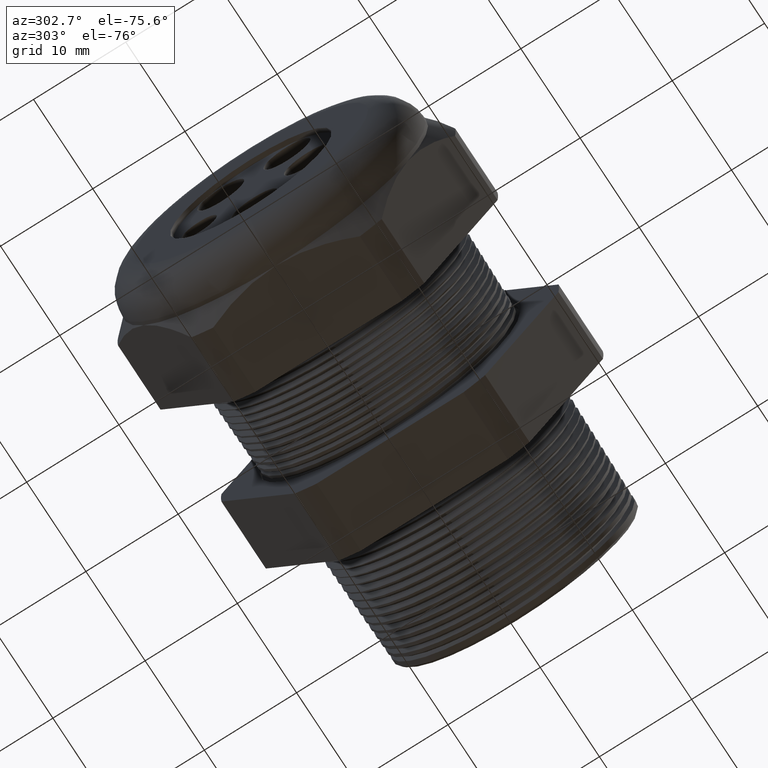
[diagram: clean part render]
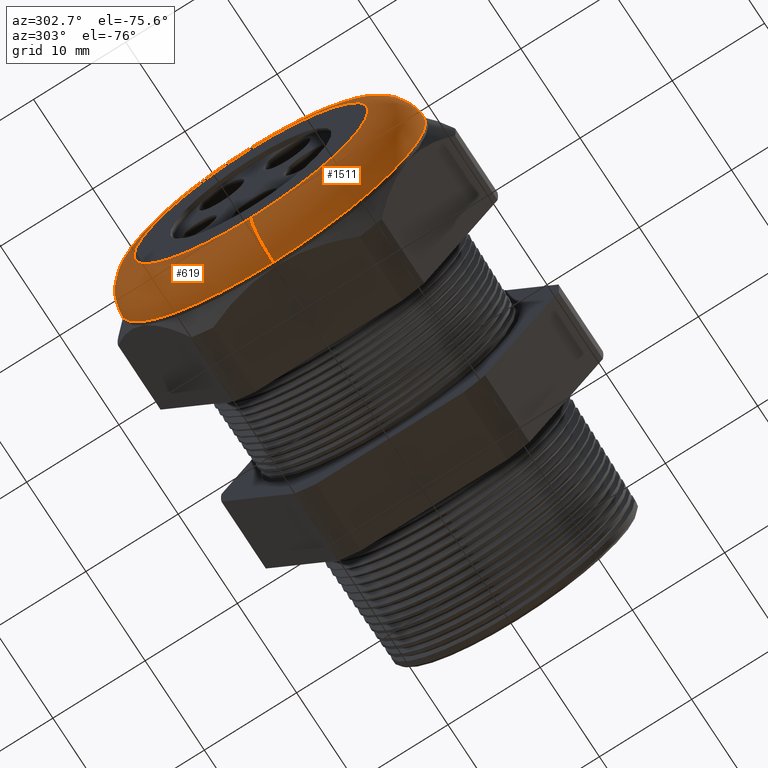
[diagram: same view with one multi-face feature highlighted, each face labeled with its STEP entity id]
A machine part, auxiliary view. The highlighted faces form ONE feature: a constant-radius fillet chain: 2 tangent blend faces with common blend radius 3.81 mm. The faces share edges in the B-rep.
Their STEP definitions:
[1] entity #1511 (Torus):
#122 = EDGE_LOOP ( 'NONE', ( #1436, #1437, #1438, #1493 ) ) ;
#600 = VERTEX_POINT ( 'NONE', #3356 ) ;
#602 = EDGE_CURVE ( 'NONE', #624, #600, #3354, .T. ) ;
#623 = VERTEX_POINT ( 'NONE', #3375 ) ;
#624 = VERTEX_POINT ( 'NONE', #3374 ) ;
#626 = EDGE_CURVE ( 'NONE', #623, #678, #3372, .T. ) ;
#678 = VERTEX_POINT ( 'NONE', #3516 ) ;
#1287 = EDGE_CURVE ( 'NONE', #678, #600, #4724, .T. ) ;
#1301 = EDGE_CURVE ( 'NONE', #624, #623, #4760, .T. ) ;
#1436 = ORIENTED_EDGE ( 'NONE', *, *, #626, .F. ) ;
#1437 = ORIENTED_EDGE ( 'NONE', *, *, #1301, .F. ) ;
#1438 = ORIENTED_EDGE ( 'NONE', *, *, #602, .T. ) ;
#1493 = ORIENTED_EDGE ( 'NONE', *, *, #1287, .F. ) ;
#1511 = ADVANCED_FACE ( 'NONE', ( #5044 ), #5043, .T. ) ;
#3350 = DIRECTION ( 'NONE',  ( 0.0000000000000000000, 0.0000000000000000000, -1.000000000000000000 ) ) ;
#3351 = DIRECTION ( 'NONE',  ( 0.0000000000000000000, -1.000000000000000000, 0.0000000000000000000 ) ) ;
#3352 = CARTESIAN_POINT ( 'NONE',  ( -1.379999999999999700, 0.0000000000000000000, 0.5000000000000002200 ) ) ;
#3353 = AXIS2_PLACEMENT_3D ( 'NONE', #3352, #3351, #3350 ) ;
#3354 = CIRCLE ( 'NONE', #3353, 0.1499999999999999700 ) ;
#3356 = CARTESIAN_POINT ( 'NONE',  ( -1.529999999999999800, 0.0000000000000000000, 0.5000000000000002200 ) ) ;
#3368 = DIRECTION ( 'NONE',  ( 0.0000000000000000000, -1.224646799147353200E-016, 1.000000000000000000 ) ) ;
#3369 = DIRECTION ( 'NONE',  ( 0.0000000000000000000, 1.000000000000000000, 1.224646799147353200E-016 ) ) ;
#3370 = CARTESIAN_POINT ( 'NONE',  ( -1.379999999999999700, 6.123233995736768500E-017, -0.5000000000000002200 ) ) ;
#3371 = AXIS2_PLACEMENT_3D ( 'NONE', #3370, #3369, #3368 ) ;
#3372 = CIRCLE ( 'NONE', #3371, 0.1499999999999999700 ) ;
#3374 = CARTESIAN_POINT ( 'NONE',  ( -1.379999999999999700, 7.960204194457797900E-017, 0.6500000000000001300 ) ) ;
#3375 = CARTESIAN_POINT ( 'NONE',  ( -1.379999999999999700, 0.0000000000000000000, -0.6500000000000001300 ) ) ;
#3516 = CARTESIAN_POINT ( 'NONE',  ( -1.529999999999999800, 7.041719095097282600E-017, -0.5000000000000002200 ) ) ;
#4720 = DIRECTION ( 'NONE',  ( 0.0000000000000000000, 0.0000000000000000000, 1.000000000000000000 ) ) ;
#4721 = DIRECTION ( 'NONE',  ( -1.000000000000000000, 0.0000000000000000000, 0.0000000000000000000 ) ) ;
#4722 = CARTESIAN_POINT ( 'NONE',  ( -1.529999999999999800, 0.0000000000000000000, 0.0000000000000000000 ) ) ;
#4723 = AXIS2_PLACEMENT_3D ( 'NONE', #4722, #4721, #4720 ) ;
#4724 = CIRCLE ( 'NONE', #4723, 0.5000000000000002200 ) ;
#4757 = DIRECTION ( 'NONE',  ( 0.0000000000000000000, 0.0000000000000000000, 1.000000000000000000 ) ) ;
#4758 = DIRECTION ( 'NONE',  ( 1.000000000000000000, 0.0000000000000000000, 0.0000000000000000000 ) ) ;
#4759 = AXIS2_PLACEMENT_3D ( 'NONE', #4765, #4758, #4757 ) ;
#4760 = CIRCLE ( 'NONE', #4759, 0.6500000000000001300 ) ;
#4765 = CARTESIAN_POINT ( 'NONE',  ( -1.379999999999999700, 0.0000000000000000000, 0.0000000000000000000 ) ) ;
#5038 = DIRECTION ( 'NONE',  ( 0.0000000000000000000, 0.0000000000000000000, 1.000000000000000000 ) ) ;
#5039 = DIRECTION ( 'NONE',  ( -1.000000000000000000, 0.0000000000000000000, 0.0000000000000000000 ) ) ;
#5040 = CARTESIAN_POINT ( 'NONE',  ( -1.379999999999999700, 0.0000000000000000000, 0.0000000000000000000 ) ) ;
#5041 = AXIS2_PLACEMENT_3D ( 'NONE', #5040, #5039, #5038 ) ;
#5043 = TOROIDAL_SURFACE ( 'NONE', #5041, 0.5000000000000002200, 0.1499999999999999900 ) ;
#5044 = FACE_OUTER_BOUND ( 'NONE', #122, .T. ) ;
[2] entity #619 (Torus):
#600 = VERTEX_POINT ( 'NONE', #3356 ) ;
#601 = ORIENTED_EDGE ( 'NONE', *, *, #602, .F. ) ;
#602 = EDGE_CURVE ( 'NONE', #624, #600, #3354, .T. ) ;
#619 = ADVANCED_FACE ( 'NONE', ( #3386 ), #3385, .T. ) ;
#620 = EDGE_LOOP ( 'NONE', ( #621, #625, #679, #601 ) ) ;
#621 = ORIENTED_EDGE ( 'NONE', *, *, #622, .F. ) ;
#622 = EDGE_CURVE ( 'NONE', #623, #624, #3379, .T. ) ;
#623 = VERTEX_POINT ( 'NONE', #3375 ) ;
#624 = VERTEX_POINT ( 'NONE', #3374 ) ;
#625 = ORIENTED_EDGE ( 'NONE', *, *, #626, .T. ) ;
#626 = EDGE_CURVE ( 'NONE', #623, #678, #3372, .T. ) ;
#678 = VERTEX_POINT ( 'NONE', #3516 ) ;
#679 = ORIENTED_EDGE ( 'NONE', *, *, #680, .F. ) ;
#680 = EDGE_CURVE ( 'NONE', #600, #678, #3515, .T. ) ;
#3350 = DIRECTION ( 'NONE',  ( 0.0000000000000000000, 0.0000000000000000000, -1.000000000000000000 ) ) ;
#3351 = DIRECTION ( 'NONE',  ( 0.0000000000000000000, -1.000000000000000000, 0.0000000000000000000 ) ) ;
#3352 = CARTESIAN_POINT ( 'NONE',  ( -1.379999999999999700, 0.0000000000000000000, 0.5000000000000002200 ) ) ;
#3353 = AXIS2_PLACEMENT_3D ( 'NONE', #3352, #3351, #3350 ) ;
#3354 = CIRCLE ( 'NONE', #3353, 0.1499999999999999700 ) ;
#3356 = CARTESIAN_POINT ( 'NONE',  ( -1.529999999999999800, 0.0000000000000000000, 0.5000000000000002200 ) ) ;
#3368 = DIRECTION ( 'NONE',  ( 0.0000000000000000000, -1.224646799147353200E-016, 1.000000000000000000 ) ) ;
#3369 = DIRECTION ( 'NONE',  ( 0.0000000000000000000, 1.000000000000000000, 1.224646799147353200E-016 ) ) ;
#3370 = CARTESIAN_POINT ( 'NONE',  ( -1.379999999999999700, 6.123233995736768500E-017, -0.5000000000000002200 ) ) ;
#3371 = AXIS2_PLACEMENT_3D ( 'NONE', #3370, #3369, #3368 ) ;
#3372 = CIRCLE ( 'NONE', #3371, 0.1499999999999999700 ) ;
#3374 = CARTESIAN_POINT ( 'NONE',  ( -1.379999999999999700, 7.960204194457797900E-017, 0.6500000000000001300 ) ) ;
#3375 = CARTESIAN_POINT ( 'NONE',  ( -1.379999999999999700, 0.0000000000000000000, -0.6500000000000001300 ) ) ;
#3376 = DIRECTION ( 'NONE',  ( 0.0000000000000000000, 0.0000000000000000000, 1.000000000000000000 ) ) ;
#3377 = DIRECTION ( 'NONE',  ( 1.000000000000000000, 0.0000000000000000000, 0.0000000000000000000 ) ) ;
#3378 = AXIS2_PLACEMENT_3D ( 'NONE', #3384, #3377, #3376 ) ;
#3379 = CIRCLE ( 'NONE', #3378, 0.6500000000000001300 ) ;
#3380 = DIRECTION ( 'NONE',  ( 0.0000000000000000000, 0.0000000000000000000, 1.000000000000000000 ) ) ;
#3381 = DIRECTION ( 'NONE',  ( -1.000000000000000000, 0.0000000000000000000, 0.0000000000000000000 ) ) ;
#3382 = CARTESIAN_POINT ( 'NONE',  ( -1.379999999999999700, 0.0000000000000000000, 0.0000000000000000000 ) ) ;
#3383 = AXIS2_PLACEMENT_3D ( 'NONE', #3382, #3381, #3380 ) ;
#3384 = CARTESIAN_POINT ( 'NONE',  ( -1.379999999999999700, 0.0000000000000000000, 0.0000000000000000000 ) ) ;
#3385 = TOROIDAL_SURFACE ( 'NONE', #3383, 0.5000000000000002200, 0.1499999999999999900 ) ;
#3386 = FACE_OUTER_BOUND ( 'NONE', #620, .T. ) ;
#3511 = DIRECTION ( 'NONE',  ( 0.0000000000000000000, 0.0000000000000000000, 1.000000000000000000 ) ) ;
#3512 = DIRECTION ( 'NONE',  ( -1.000000000000000000, 0.0000000000000000000, 0.0000000000000000000 ) ) ;
#3513 = CARTESIAN_POINT ( 'NONE',  ( -1.529999999999999800, 0.0000000000000000000, 0.0000000000000000000 ) ) ;
#3514 = AXIS2_PLACEMENT_3D ( 'NONE', #3513, #3512, #3511 ) ;
#3515 = CIRCLE ( 'NONE', #3514, 0.5000000000000002200 ) ;
#3516 = CARTESIAN_POINT ( 'NONE',  ( -1.529999999999999800, 7.041719095097282600E-017, -0.5000000000000002200 ) ) ;